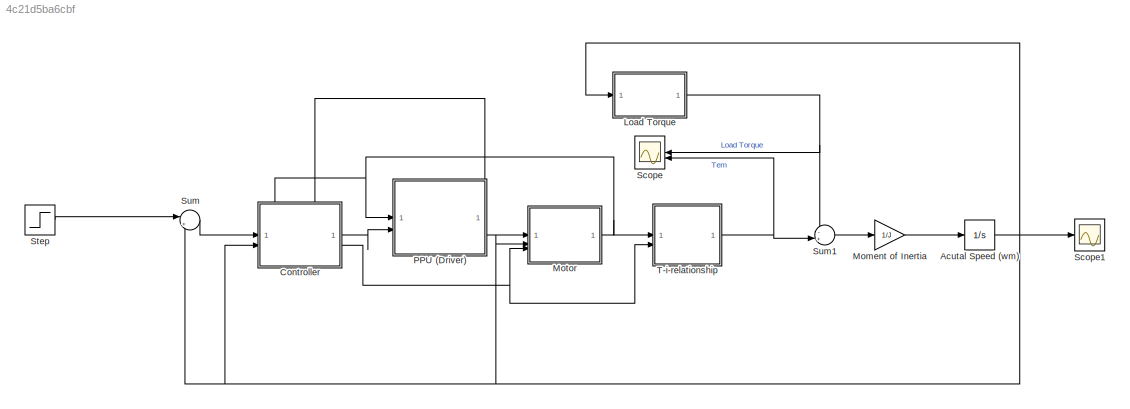
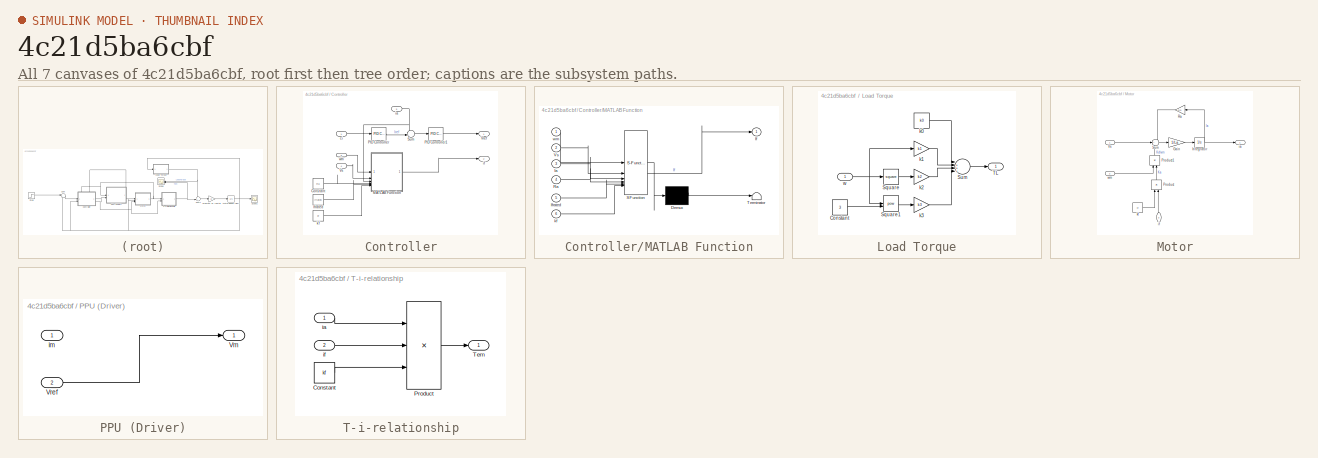
[diagram: thumbnail index - all 7 canvases of the model, root first then tree order]
MODEL slx_4c21d5ba6cbf
KIND model
CONFIG AbsTol = auto
CONFIG EnableMultiTasking = off
CONFIG FixedStep = auto
CONFIG MaxStep = auto
CONFIG MinStep = auto
CONFIG RelTol = 1e-3
CONFIG SampleTimeConstraint = Unconstrained
CONFIG SolverName = VariableStepAuto
CONFIG StartTime = 0.0
CONFIG StopTime = 200
BLOCK [Integrator] Acutal Speed (wm)
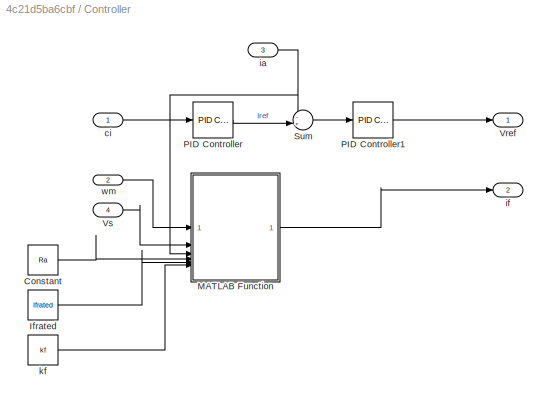
BLOCK [SubSystem] Controller
  PortSchema = {"entries":[{"content":{"sides":[{"content":{"connectorIds":["In1","In2"]},"type":"ConnectorPlacement.EquallySpacedRectSide","uuid":"bb364eb7-fe2e-4b30-a416-00f7c1cb992e"},{"content":{"connectorIds":["Out1","Out2"],"side":"RIGHT"},"type":"ConnectorPlacement.EquallySpacedRectSide","uuid":"4bbb6234-647d-4276-b828-5a6565b9e037"},{"content":{"connectorIds":["In3","In4"],"side":"TOP"},"type":"Connector...<+264ch>
BLOCK [Constant] Controller/Constant
  Value = Ra
BLOCK [Constant] Controller/Ifrated
  Value = Ifrated
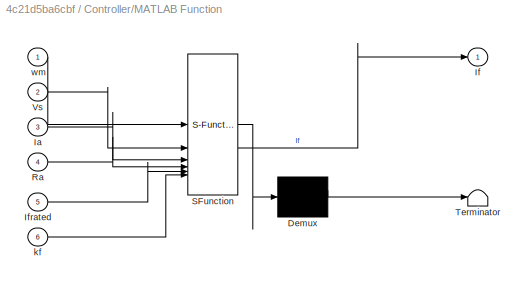
BLOCK [SubSystem] Controller/MATLAB Function
  ErrorFcn = Stateflow.Translate.translate
  PermitHierarchicalResolution = ExplicitOnly
  SFBlockType = MATLAB Function
  TreatAsAtomicUnit = on
BLOCK [Demux] Controller/MATLAB Function/ Demux 
  Outputs = 1
BLOCK [S-Function] Controller/MATLAB Function/ SFunction 
  EnableBusSupport = on
  FunctionName = sf_sfun
  PortCounts = [6 2]
  SFcnIsStateOwnerBlock = off
  SFunctionDeploymentMode = off
  Tag = Stateflow S-Function 2
BLOCK [Terminator] Controller/MATLAB Function/ Terminator 
BLOCK [Inport] Controller/MATLAB Function/Ia
  Port = 3
BLOCK [Outport] Controller/MATLAB Function/If
BLOCK [Inport] Controller/MATLAB Function/Ifrated
  Port = 5
BLOCK [Inport] Controller/MATLAB Function/Ra
  Port = 4
BLOCK [Inport] Controller/MATLAB Function/Vs
  Port = 2
BLOCK [Inport] Controller/MATLAB Function/kf
  Port = 6
BLOCK [Inport] Controller/MATLAB Function/wm
BLOCK [Reference] Controller/PID Controller  REF=slpidlib/PID Controller
  LibrarySourceBlock = simulink/Continuous/PID Controller
  SourceBlock = slpidlib/PID Controller
  SourceType = PID 1dof
BLOCK [Reference] Controller/PID Controller1  REF=slpidlib/PID Controller
  LibrarySourceBlock = simulink/Continuous/PID Controller
  SourceBlock = slpidlib/PID Controller
  SourceType = PID 1dof
BLOCK [Sum] Controller/Sum
  Inputs = -+|
BLOCK [Outport] Controller/Vref
BLOCK [Inport] Controller/Vs
  Port = 4
BLOCK [Inport] Controller/ci
BLOCK [Inport] Controller/ia
  Port = 3
BLOCK [Outport] Controller/if
  Port = 2
BLOCK [Constant] Controller/kf
  Value = kf
BLOCK [Inport] Controller/wm
  Port = 2
BLOCK [SubSystem] Load Torque
BLOCK [Constant] Load Torque/Constant
  Value = 3
BLOCK [Math] Load Torque/Square
  Operator = square
BLOCK [Math] Load Torque/Square1
  Operator = pow
BLOCK [Sum] Load Torque/Sum
  Inputs = |++++|
BLOCK [Outport] Load Torque/TL
BLOCK [Constant] Load Torque/k0
  Value = k0
BLOCK [Gain] Load Torque/k1
  Gain = k1
BLOCK [Gain] Load Torque/k2
  Gain = k2
BLOCK [Gain] Load Torque/k3
  Gain = k3
BLOCK [Inport] Load Torque/w
BLOCK [Gain] Moment of Inertia
  Gain = 1/J
BLOCK [SubSystem] Motor
BLOCK [Gain] Motor/Gain
  Gain = 1/La
BLOCK [Integrator] Motor/Integrator
BLOCK [Product] Motor/Product
  NameLocation = right
BLOCK [Product] Motor/Product1
  NameLocation = right
BLOCK [Gain] Motor/Ra
  Gain = Ra
  NameLocation = top
BLOCK [Sum] Motor/Sum
  Inputs = -+-
BLOCK [Inport] Motor/Vs
BLOCK [Outport] Motor/ia
BLOCK [Inport] Motor/if
  NameLocation = right
  Port = 3
BLOCK [Constant] Motor/kf
  Value = kf
BLOCK [Inport] Motor/wm
  Port = 2
BLOCK [SubSystem] PPU (Driver)
BLOCK [Outport] PPU (Driver)/Vm
BLOCK [Inport] PPU (Driver)/Vref
  Port = 2
BLOCK [Inport] PPU (Driver)/im
BLOCK [Scope] Scope
  Floating = off
  NameLocation = top
  NumInputPorts = 2
  ScopeSpecificationString = Simulink.scopes.TimeScopeBlockCfg('CurrentConfiguration', extmgr.ConfigurationSet(extmgr.Configuration('Core','General UI',true,'FigureColor',[1 1 1]),extmgr.Configuration('Core','Source UI',true),extmgr.Configuration('Sources','WiredSimulink',true),extmgr.Configuration('Visuals','Time Domain',true,'SerializedDisplays',{struct('MinYLimReal','-50.00000','MaxYLimReal','450.00000','YLabelReal','','Mi...<+1715ch>
BLOCK [Scope] Scope1
  Floating = off
  NumInputPorts = 1
  ScopeSpecificationString = Simulink.scopes.TimeScopeBlockCfg('CurrentConfiguration', extmgr.ConfigurationSet(extmgr.Configuration('Core','General UI',true,'FigureColor',[0.941176470588235 0.941176470588235 0.941176470588235]),extmgr.Configuration('Core','Source UI',true),extmgr.Configuration('Sources','WiredSimulink',true,'DataLoggingVariableName','ScopeData1'),extmgr.Configuration('Visuals','Time Domain',true,'SerializedDi...<+2175ch>
BLOCK [Step] Step
  After = 120
  Before = 40
  SampleTime = 0
  Time = 60
BLOCK [Sum] Sum
  Inputs = |+-
BLOCK [Sum] Sum1
  Inputs = -+|
BLOCK [SubSystem] T-i-relationship
BLOCK [Constant] T-i-relationship/Constant
  Value = kf
BLOCK [Product] T-i-relationship/Product
  Inputs = 3
BLOCK [Outport] T-i-relationship/Tem
BLOCK [Inport] T-i-relationship/ia
BLOCK [Inport] T-i-relationship/if
  Port = 2
NET Acutal Speed (wm):1 -> Controller:2, Load Torque:1, Motor:2, Scope1:1, Sum:2
LINE Controller/Constant:1 -> Controller/MATLAB Function:4
LINE Controller/Ifrated:1 -> Controller/MATLAB Function:5
LINE Controller/MATLAB Function:1 -> Controller/if:1
LINE Controller/PID Controller1:1 -> Controller/Vref:1
LINE Controller/PID Controller:1 -> Controller/Sum:2
LINE Controller/Sum:1 -> Controller/PID Controller1:1
LINE Controller/Vs:1 -> Controller/MATLAB Function:2
LINE Controller/ci:1 -> Controller/PID Controller:1
NET Controller/ia:1 -> Controller/MATLAB Function:3, Controller/Sum:1
LINE Controller/kf:1 -> Controller/MATLAB Function:6
LINE Controller/wm:1 -> Controller/MATLAB Function:1
LINE Controller:1 -> PPU (Driver):2
NET Controller:2 -> Motor:3, T-i-relationship:2
LINE Load Torque/Constant:1 -> Load Torque/Square1:2
LINE Load Torque/Square1:1 -> Load Torque/k3:1
LINE Load Torque/Square:1 -> Load Torque/k2:1
LINE Load Torque/Sum:1 -> Load Torque/TL:1
LINE Load Torque/k0:1 -> Load Torque/Sum:1
LINE Load Torque/k1:1 -> Load Torque/Sum:2
LINE Load Torque/k2:1 -> Load Torque/Sum:3
LINE Load Torque/k3:1 -> Load Torque/Sum:4
NET Load Torque/w:1 -> Load Torque/Square1:1, Load Torque/Square:1, Load Torque/k1:1
NET Load Torque:1 -> Scope:1, Sum1:1
LINE Moment of Inertia:1 -> Acutal Speed (wm):1
LINE Motor/Gain:1 -> Motor/Integrator:1
NET Motor/Integrator:1 -> Motor/Ra:1, Motor/ia:1
LINE Motor/Product1:1 -> Motor/Sum:3
LINE Motor/Product:1 -> Motor/Product1:2
LINE Motor/Ra:1 -> Motor/Sum:1
LINE Motor/Sum:1 -> Motor/Gain:1
LINE Motor/Vs:1 -> Motor/Sum:2
LINE Motor/if:1 -> Motor/Product:2
LINE Motor/kf:1 -> Motor/Product:1
LINE Motor/wm:1 -> Motor/Product1:1
NET Motor:1 -> Controller:3, PPU (Driver):1, T-i-relationship:1
LINE PPU (Driver)/Vref:1 -> PPU (Driver)/Vm:1
NET PPU (Driver):1 -> Controller:4, Motor:1
LINE Step:1 -> Sum:1
LINE Sum1:1 -> Moment of Inertia:1
LINE Sum:1 -> Controller:1
LINE T-i-relationship/Constant:1 -> T-i-relationship/Product:3
LINE T-i-relationship/Product:1 -> T-i-relationship/Tem:1
LINE T-i-relationship/ia:1 -> T-i-relationship/Product:1
LINE T-i-relationship/if:1 -> T-i-relationship/Product:2
NET T-i-relationship:1 -> Scope:2, Sum1:2
note: NET lines group one-source signal fan-out (src -> all destinations, sorted); 1:1 wires keep LINE
CHART Controller/MATLAB Function states=1 transitions=1
  STATE_LABEL 'eML_blk_kernel()'
  STATE_LABEL 'SCRIPT:\nfunction If = fcn(wm, Vs, Ia, Ra, Ifrated, kf)\n\nIf = (Vs - Ia * Ra) / (kf * wm);\nif abs(If) > Ifrated\n    If = Ifrated;\nend'
CHART  states=0 transitions=0
